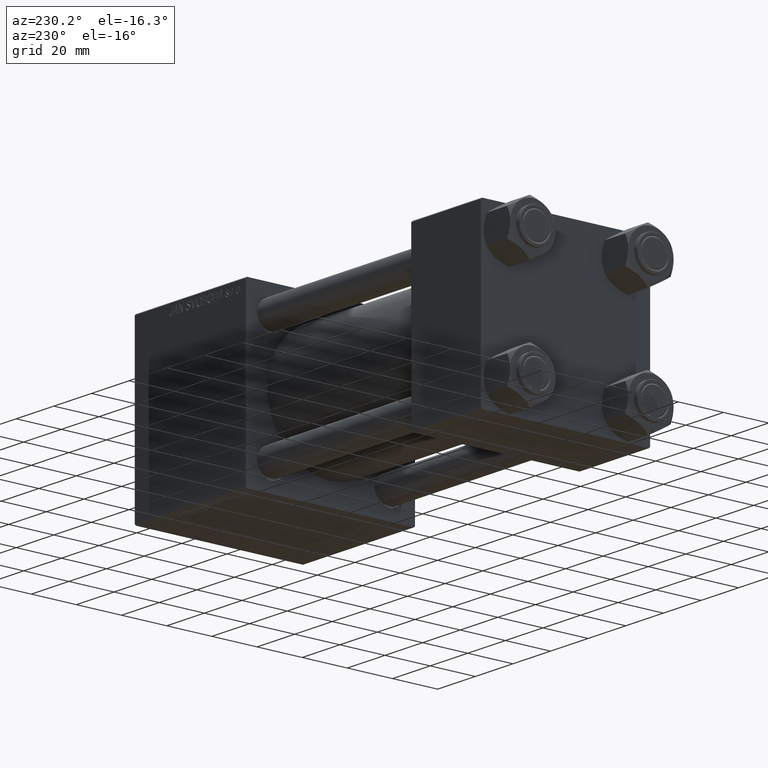
[diagram: clean part render]
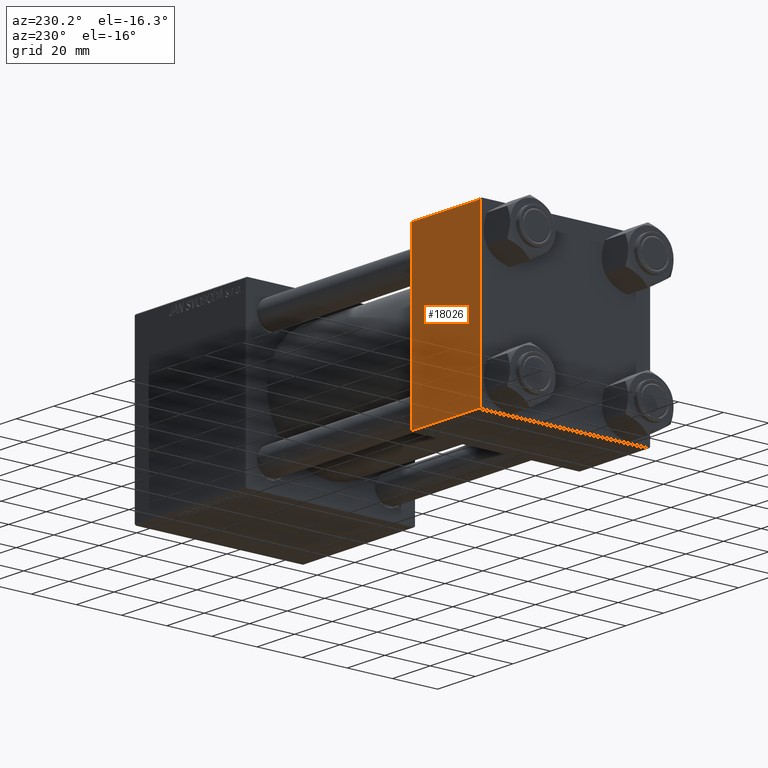
[diagram: same view with one face highlighted and labeled with its STEP entity id]
A machine part, auxiliary view. The second image highlights one B-rep face of the part: STEP entity #18026.
In plain terms, the highlighted planar face has unit normal (0, 1, 0).
Its self-contained STEP definition (entity closure, byte-faithful):
#3615 = EDGE_CURVE ( 'NONE', #10421, #6294, #17742, .T. ) ;
#4537 = ORIENTED_EDGE ( 'NONE', *, *, #8140, .T. ) ;
#5321 = VECTOR ( 'NONE', #30381, 1000.000000000000000 ) ;
#6294 = VERTEX_POINT ( 'NONE', #21450 ) ;
#7516 = CARTESIAN_POINT ( 'NONE',  ( 37.00000000000000000, 37.49999999999999289, 37.00000000000000000 ) ) ;
#7993 = FACE_OUTER_BOUND ( 'NONE', #46110, .T. ) ;
#8140 = EDGE_CURVE ( 'NONE', #8849, #10421, #38485, .T. ) ;
#8849 = VERTEX_POINT ( 'NONE', #38380 ) ;
#10421 = VERTEX_POINT ( 'NONE', #33456 ) ;
#10472 = VERTEX_POINT ( 'NONE', #41078 ) ;
#11561 = PLANE ( 'NONE',  #18671 ) ;
#15515 = DIRECTION ( 'NONE',  ( -1.000000000000000000, 0.000000000000000000, 0.000000000000000000 ) ) ;
#15879 = DIRECTION ( 'NONE',  ( -0.000000000000000000, 1.000000000000000000, 0.000000000000000000 ) ) ;
#17742 = LINE ( 'NONE', #37018, #45719 ) ;
#18026 = ADVANCED_FACE ( 'NONE', ( #7993 ), #11561, .T. ) ;
#18671 = AXIS2_PLACEMENT_3D ( 'NONE', #22761, #15879, #26821 ) ;
#21450 = CARTESIAN_POINT ( 'NONE',  ( 37.00000000000000000, 37.49999999999999289, -36.99999999999998579 ) ) ;
#22640 = LINE ( 'NONE', #22881, #40367 ) ;
#22761 = CARTESIAN_POINT ( 'NONE',  ( 37.00000000000000000, 37.49999999999999289, 37.50000000000000000 ) ) ;
#22881 = CARTESIAN_POINT ( 'NONE',  ( 37.00000000000000000, 37.49999999999999289, -36.99999999999998579 ) ) ;
#22993 = EDGE_CURVE ( 'NONE', #8849, #10472, #27095, .T. ) ;
#23163 = ORIENTED_EDGE ( 'NONE', *, *, #42249, .T. ) ;
#26821 = DIRECTION ( 'NONE',  ( 0.000000000000000000, -0.000000000000000000, 1.000000000000000000 ) ) ;
#27095 = LINE ( 'NONE', #29911, #42146 ) ;
#29911 = CARTESIAN_POINT ( 'NONE',  ( 0.000000000000000000, 37.49999999999999289, 37.50000000000000000 ) ) ;
#30381 = DIRECTION ( 'NONE',  ( 1.000000000000000000, 0.000000000000000000, 0.000000000000000000 ) ) ;
#30410 = DIRECTION ( 'NONE',  ( 0.000000000000000000, 0.000000000000000000, -1.000000000000000000 ) ) ;
#33456 = CARTESIAN_POINT ( 'NONE',  ( 37.00000000000000000, 37.49999999999999289, 37.00000000000000000 ) ) ;
#36526 = DIRECTION ( 'NONE',  ( 0.000000000000000000, 0.000000000000000000, -1.000000000000000000 ) ) ;
#37018 = CARTESIAN_POINT ( 'NONE',  ( 37.00000000000000000, 37.49999999999999289, 37.50000000000000000 ) ) ;
#38380 = CARTESIAN_POINT ( 'NONE',  ( 0.000000000000000000, 37.49999999999999289, 37.00000000000000000 ) ) ;
#38485 = LINE ( 'NONE', #7516, #5321 ) ;
#40367 = VECTOR ( 'NONE', #15515, 1000.000000000000000 ) ;
#41078 = CARTESIAN_POINT ( 'NONE',  ( 0.000000000000000000, 37.49999999999999289, -36.99999999999998579 ) ) ;
#42146 = VECTOR ( 'NONE', #30410, 1000.000000000000000 ) ;
#42249 = EDGE_CURVE ( 'NONE', #6294, #10472, #22640, .T. ) ;
#44148 = ORIENTED_EDGE ( 'NONE', *, *, #3615, .T. ) ;
#45719 = VECTOR ( 'NONE', #36526, 1000.000000000000000 ) ;
#46110 = EDGE_LOOP ( 'NONE', ( #44148, #23163, #49588, #4537 ) ) ;
#49588 = ORIENTED_EDGE ( 'NONE', *, *, #22993, .F. ) ;